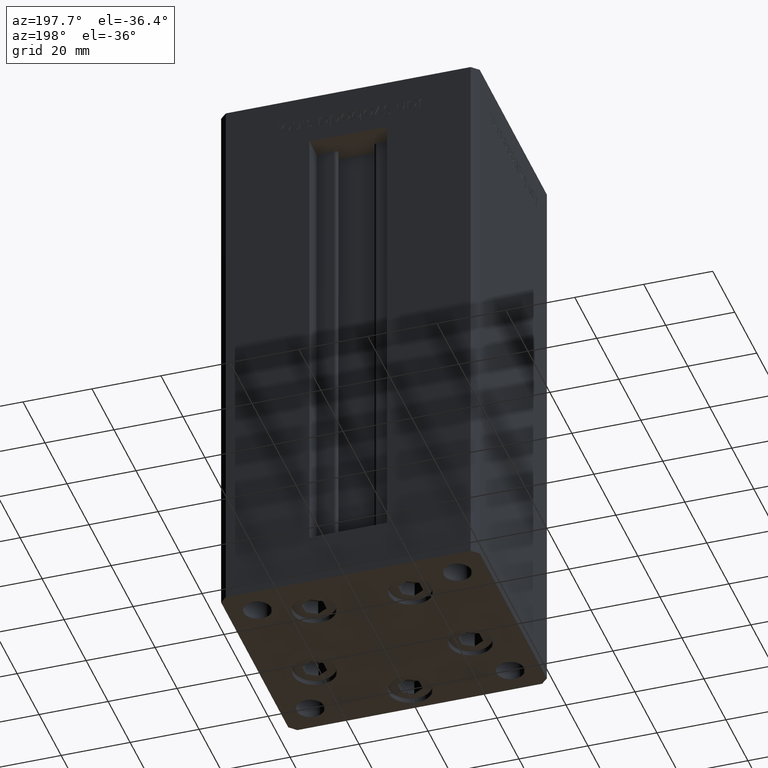
[diagram: clean part render]
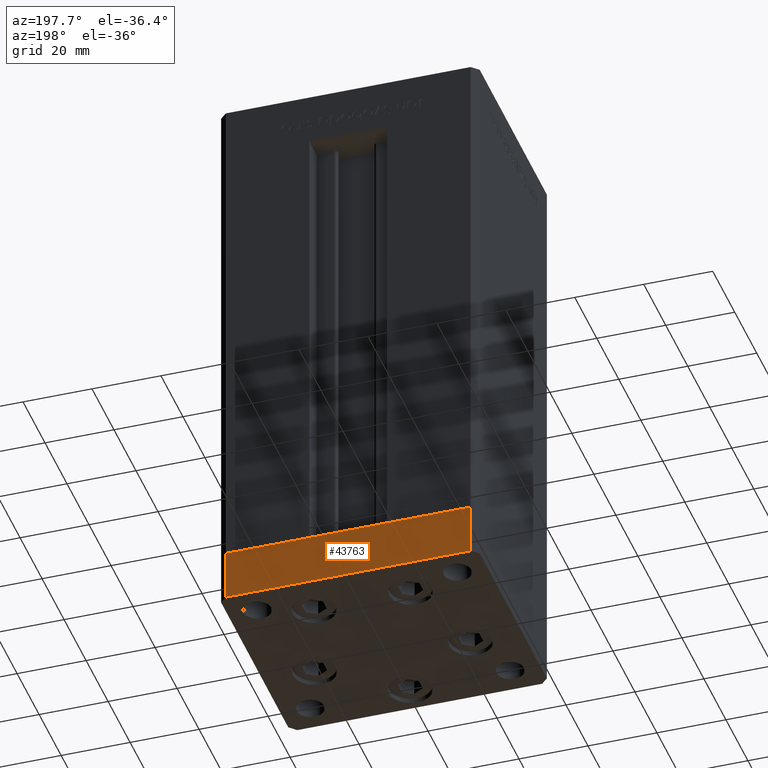
[diagram: same view with one face highlighted and labeled with its STEP entity id]
A machine part, auxiliary view. The second image highlights one B-rep face of the part: STEP entity #43763.
In plain terms, the highlighted planar face has unit normal (0, 1, 0).
Its self-contained STEP definition (entity closure, byte-faithful):
#2103 = CARTESIAN_POINT ( 'NONE',  ( 35.49999999999992184, 32.50000000000000711, -15.00000000000000000 ) ) ;
#3174 = VERTEX_POINT ( 'NONE', #24870 ) ;
#3492 = VERTEX_POINT ( 'NONE', #44043 ) ;
#4018 = VECTOR ( 'NONE', #30804, 1000.000000000000000 ) ;
#4364 = DIRECTION ( 'NONE',  ( 0.000000000000000000, 0.000000000000000000, 1.000000000000000000 ) ) ;
#5076 = VECTOR ( 'NONE', #7137, 1000.000000000000000 ) ;
#7137 = DIRECTION ( 'NONE',  ( -1.000000000000000000, -1.954618001100629052E-16, 0.000000000000000000 ) ) ;
#7778 = ORIENTED_EDGE ( 'NONE', *, *, #38163, .T. ) ;
#8265 = ORIENTED_EDGE ( 'NONE', *, *, #34436, .F. ) ;
#13089 = DIRECTION ( 'NONE',  ( 0.000000000000000000, 0.000000000000000000, 1.000000000000000000 ) ) ;
#15315 = LINE ( 'NONE', #2103, #5076 ) ;
#19522 = CARTESIAN_POINT ( 'NONE',  ( -35.50000000000002842, 32.49999999999999289, 0.000000000000000000 ) ) ;
#21594 = PLANE ( 'NONE',  #25479 ) ;
#22104 = DIRECTION ( 'NONE',  ( -1.954618001100629052E-16, 1.000000000000000000, 0.000000000000000000 ) ) ;
#24176 = LINE ( 'NONE', #33393, #52036 ) ;
#24437 = CARTESIAN_POINT ( 'NONE',  ( -35.50000000000002842, 32.49999999999999289, -15.00000000000000000 ) ) ;
#24870 = CARTESIAN_POINT ( 'NONE',  ( 35.49999999999992184, 32.50000000000000711, -15.00000000000000000 ) ) ;
#25479 = AXIS2_PLACEMENT_3D ( 'NONE', #30552, #22104, #38201 ) ;
#26589 = VERTEX_POINT ( 'NONE', #19522 ) ;
#28412 = LINE ( 'NONE', #24437, #35404 ) ;
#29814 = ORIENTED_EDGE ( 'NONE', *, *, #37543, .T. ) ;
#30552 = CARTESIAN_POINT ( 'NONE',  ( 35.49999999999992184, 32.50000000000000711, -15.00000000000000000 ) ) ;
#30804 = DIRECTION ( 'NONE',  ( -1.000000000000000000, -1.954618001100629052E-16, 0.000000000000000000 ) ) ;
#33393 = CARTESIAN_POINT ( 'NONE',  ( 35.49999999999992184, 32.50000000000000711, -15.00000000000000000 ) ) ;
#33719 = FACE_OUTER_BOUND ( 'NONE', #44649, .T. ) ;
#34259 = EDGE_CURVE ( 'NONE', #45452, #26589, #50816, .T. ) ;
#34436 = EDGE_CURVE ( 'NONE', #3174, #45452, #24176, .T. ) ;
#35404 = VECTOR ( 'NONE', #4364, 1000.000000000000000 ) ;
#35620 = CARTESIAN_POINT ( 'NONE',  ( 35.49999999999992184, 32.50000000000000711, 0.000000000000000000 ) ) ;
#37543 = EDGE_CURVE ( 'NONE', #3492, #26589, #28412, .T. ) ;
#38163 = EDGE_CURVE ( 'NONE', #3174, #3492, #15315, .T. ) ;
#38201 = DIRECTION ( 'NONE',  ( -1.000000000000000000, -1.954618001100629052E-16, 0.000000000000000000 ) ) ;
#43763 = ADVANCED_FACE ( 'NONE', ( #33719 ), #21594, .T. ) ;
#44043 = CARTESIAN_POINT ( 'NONE',  ( -35.50000000000002842, 32.49999999999999289, -15.00000000000000000 ) ) ;
#44649 = EDGE_LOOP ( 'NONE', ( #46235, #8265, #7778, #29814 ) ) ;
#45452 = VERTEX_POINT ( 'NONE', #35620 ) ;
#46083 = CARTESIAN_POINT ( 'NONE',  ( 35.49999999999992184, 32.50000000000000711, 0.000000000000000000 ) ) ;
#46235 = ORIENTED_EDGE ( 'NONE', *, *, #34259, .F. ) ;
#50816 = LINE ( 'NONE', #46083, #4018 ) ;
#52036 = VECTOR ( 'NONE', #13089, 1000.000000000000000 ) ;